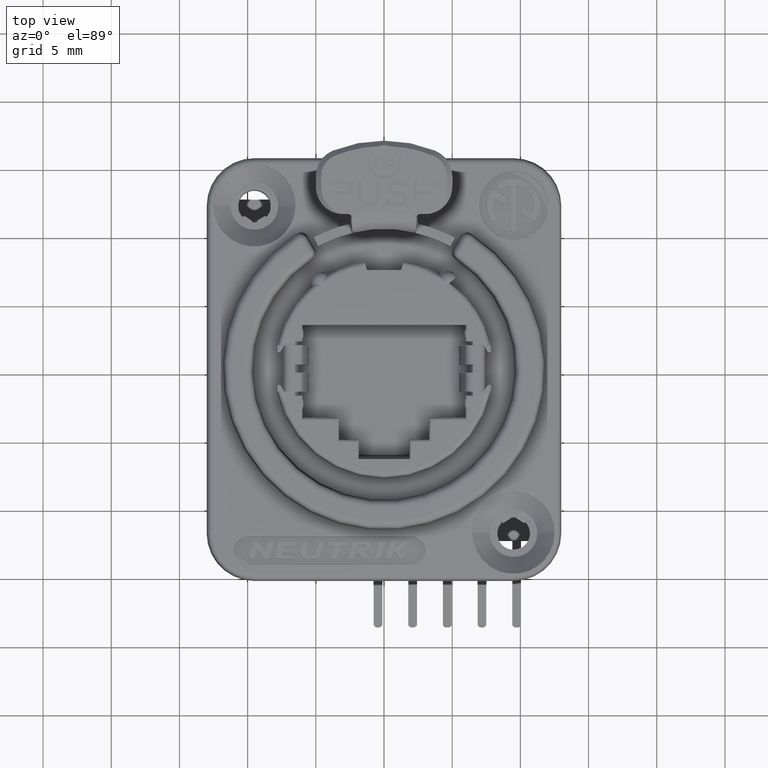
[diagram: clean part render]
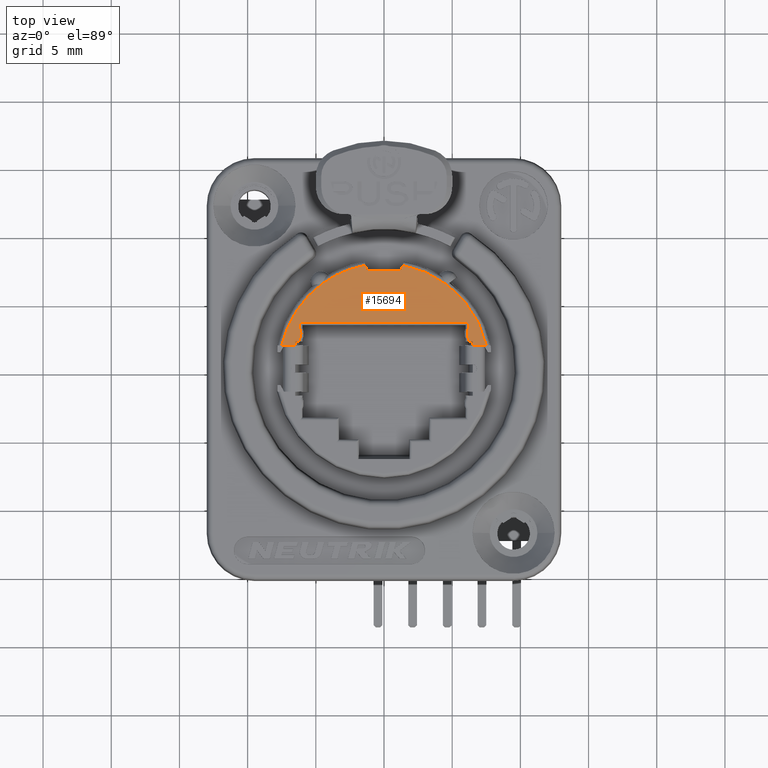
[diagram: same view with one face highlighted and labeled with its STEP entity id]
A machine part, top view. The second image highlights one B-rep face of the part: STEP entity #15694.
In plain terms, the highlighted planar face has unit normal (0, 0, -1).
Its self-contained STEP definition (entity closure, byte-faithful):
#4836=CARTESIAN_POINT('',(0.E0,0.E0,4.546363285840E-14));
#4837=DIRECTION('',(0.E0,0.E0,1.E0));
#4838=DIRECTION('',(-5.864033070268E-1,8.100192352704E-1,0.E0));
#4839=AXIS2_PLACEMENT_3D('',#4836,#4837,#4838);
#4852=CARTESIAN_POINT('',(-4.506210184517E0,6.224960029989E0,0.E0));
#4927=DIRECTION('',(0.E0,1.E0,0.E0));
#4928=VECTOR('',#4927,1.961727116233E-1);
#4929=CARTESIAN_POINT('',(-6.175E0,2.E0,0.E0));
#4930=LINE('',#4929,#4928);
#4931=DIRECTION('',(0.E0,1.E0,0.E0));
#4932=VECTOR('',#4931,3.E-1);
#4933=CARTESIAN_POINT('',(-6.51025E0,1.7E0,0.E0));
#4934=LINE('',#4933,#4932);
#4935=DIRECTION('',(-1.E0,0.E0,1.216469403864E-14));
#4936=VECTOR('',#4935,9.841517518526E-1);
#4937=CARTESIAN_POINT('',(-6.51025E0,1.7E0,0.E0));
#4938=LINE('',#4937,#4936);
#4939=CARTESIAN_POINT('',(0.E0,0.E0,4.546363285840E-14));
#4940=DIRECTION('',(0.E0,0.E0,-1.E0));
#4941=DIRECTION('',(-5.864033070268E-1,8.100192352704E-1,0.E0));
#4942=AXIS2_PLACEMENT_3D('',#4939,#4940,#4941);
#4944=DIRECTION('',(3.007057995043E-1,-9.537169507482E-1,0.E0));
#4945=VECTOR('',#4944,3.803114311107E-1);
#4946=CARTESIAN_POINT('',(-1.364361852953E0,7.562709458414E0,0.E0));
#4947=LINE('',#4946,#4945);
#4948=DIRECTION('',(-1.E0,0.E0,0.E0));
#4949=VECTOR('',#4948,2.5E0);
#4950=CARTESIAN_POINT('',(1.25E0,7.2E0,0.E0));
#4951=LINE('',#4950,#4949);
#4952=DIRECTION('',(-3.007057995043E-1,-9.537169507482E-1,0.E0));
#4953=VECTOR('',#4952,3.803114311107E-1);
#4954=CARTESIAN_POINT('',(1.364361852953E0,7.562709458414E0,0.E0));
#4955=LINE('',#4954,#4953);
#4956=CARTESIAN_POINT('',(0.E0,0.E0,4.546363285840E-14));
#4957=DIRECTION('',(0.E0,0.E0,-1.E0));
#4958=DIRECTION('',(1.775404606635E-1,9.841135020044E-1,0.E0));
#4959=AXIS2_PLACEMENT_3D('',#4956,#4957,#4958);
#4961=DIRECTION('',(-1.E0,0.E0,-1.182626360170E-14));
#4962=VECTOR('',#4961,9.841517518526E-1);
#4963=CARTESIAN_POINT('',(7.494401751853E0,1.7E0,1.163883804149E-14));
#4964=LINE('',#4963,#4962);
#4965=DIRECTION('',(0.E0,1.E0,0.E0));
#4966=VECTOR('',#4965,3.E-1);
#4967=CARTESIAN_POINT('',(6.51025E0,1.7E0,0.E0));
#4968=LINE('',#4967,#4966);
#4969=DIRECTION('',(0.E0,-1.E0,0.E0));
#4970=VECTOR('',#4969,1.961727116233E-1);
#4971=CARTESIAN_POINT('',(6.175E0,2.196172711623E0,0.E0));
#4972=LINE('',#4971,#4970);
#4973=CARTESIAN_POINT('',(6.8925E0,2.55E0,0.E0));
#4974=DIRECTION('',(0.E0,0.E0,1.E0));
#4975=DIRECTION('',(-8.96875E-1,4.422841104709E-1,0.E0));
#4976=AXIS2_PLACEMENT_3D('',#4973,#4974,#4975);
#4978=DIRECTION('',(0.E0,-1.E0,0.E0));
#4979=VECTOR('',#4978,4.811727116233E-1);
#4980=CARTESIAN_POINT('',(6.175E0,3.385E0,0.E0));
#4981=LINE('',#4980,#4979);
#4982=DIRECTION('',(-1.E0,0.E0,0.E0));
#4983=VECTOR('',#4982,1.235E1);
#4984=CARTESIAN_POINT('',(6.175E0,3.385E0,0.E0));
#4985=LINE('',#4984,#4983);
#4986=DIRECTION('',(0.E0,1.E0,0.E0));
#4987=VECTOR('',#4986,4.811727116233E-1);
#4988=CARTESIAN_POINT('',(-6.175E0,2.903827288377E0,0.E0));
#4989=LINE('',#4988,#4987);
#4990=CARTESIAN_POINT('',(-6.8925E0,2.55E0,0.E0));
#4991=DIRECTION('',(0.E0,0.E0,1.E0));
#4992=DIRECTION('',(8.96875E-1,-4.422841104709E-1,0.E0));
#4993=AXIS2_PLACEMENT_3D('',#4990,#4991,#4992);
#5081=CARTESIAN_POINT('',(6.175E0,2.E0,0.E0));
#5087=DIRECTION('',(1.E0,0.E0,0.E0));
#5088=VECTOR('',#5087,3.3525E-1);
#5089=CARTESIAN_POINT('',(6.175E0,2.E0,0.E0));
#5090=LINE('',#5089,#5088);
#5107=DIRECTION('',(1.E0,0.E0,0.E0));
#5108=VECTOR('',#5107,3.3525E-1);
#5109=CARTESIAN_POINT('',(-6.51025E0,2.E0,0.E0));
#5110=LINE('',#5109,#5108);
#5115=CARTESIAN_POINT('',(-6.175E0,2.E0,0.E0));
#7268=VERTEX_POINT('',#4852);
#7293=CARTESIAN_POINT('',(7.494401751853E0,1.7E0,1.163883804149E-14));
#7294=CARTESIAN_POINT('',(6.51025E0,1.7E0,0.E0));
#7295=VERTEX_POINT('',#7293);
#7296=VERTEX_POINT('',#7294);
#7297=CARTESIAN_POINT('',(-6.51025E0,1.7E0,0.E0));
#7298=CARTESIAN_POINT('',(-7.494401751853E0,1.7E0,1.197190494887E-14));
#7299=VERTEX_POINT('',#7297);
#7300=VERTEX_POINT('',#7298);
#7311=CARTESIAN_POINT('',(6.51025E0,2.E0,0.E0));
#7312=VERTEX_POINT('',#7311);
#7315=CARTESIAN_POINT('',(-6.51025E0,2.E0,0.E0));
#7316=VERTEX_POINT('',#7315);
#7697=CARTESIAN_POINT('',(1.25E0,7.2E0,0.E0));
#7698=CARTESIAN_POINT('',(-1.25E0,7.2E0,0.E0));
#7699=VERTEX_POINT('',#7697);
#7700=VERTEX_POINT('',#7698);
#7701=CARTESIAN_POINT('',(-1.364361852953E0,7.562709458414E0,0.E0));
#7702=VERTEX_POINT('',#7701);
#7703=CARTESIAN_POINT('',(1.364361852953E0,7.562709458414E0,0.E0));
#7704=VERTEX_POINT('',#7703);
#7720=VERTEX_POINT('',#5115);
#7721=CARTESIAN_POINT('',(-6.175E0,2.196172711623E0,0.E0));
#7722=VERTEX_POINT('',#7721);
#7725=CARTESIAN_POINT('',(-6.175E0,2.903827288377E0,0.E0));
#7726=VERTEX_POINT('',#7725);
#7729=CARTESIAN_POINT('',(-6.175E0,3.385E0,0.E0));
#7730=VERTEX_POINT('',#7729);
#7733=CARTESIAN_POINT('',(6.175E0,3.385E0,0.E0));
#7734=CARTESIAN_POINT('',(6.175E0,2.903827288377E0,0.E0));
#7735=VERTEX_POINT('',#7733);
#7736=VERTEX_POINT('',#7734);
#7741=CARTESIAN_POINT('',(6.175E0,2.196172711623E0,0.E0));
#7742=VERTEX_POINT('',#7741);
#7745=VERTEX_POINT('',#5081);
#15655=CARTESIAN_POINT('',(0.E0,0.E0,0.E0));
#15656=DIRECTION('',(0.E0,0.E0,-1.E0));
#15657=DIRECTION('',(0.E0,-1.E0,0.E0));
#15658=AXIS2_PLACEMENT_3D('',#15655,#15656,#15657);
#15659=PLANE('',#15658);
#15661=ORIENTED_EDGE('',*,*,#15660,.F.);
#15663=ORIENTED_EDGE('',*,*,#15662,.F.);
#15665=ORIENTED_EDGE('',*,*,#15664,.F.);
#15667=ORIENTED_EDGE('',*,*,#15666,.T.);
#15668=ORIENTED_EDGE('',*,*,#15614,.F.);
#15669=ORIENTED_EDGE('',*,*,#15625,.T.);
#15670=ORIENTED_EDGE('',*,*,#15550,.T.);
#15671=ORIENTED_EDGE('',*,*,#15566,.F.);
#15672=ORIENTED_EDGE('',*,*,#15581,.F.);
#15673=ORIENTED_EDGE('',*,*,#15650,.T.);
#15675=ORIENTED_EDGE('',*,*,#15674,.T.);
#15677=ORIENTED_EDGE('',*,*,#15676,.T.);
#15679=ORIENTED_EDGE('',*,*,#15678,.F.);
#15681=ORIENTED_EDGE('',*,*,#15680,.F.);
#15683=ORIENTED_EDGE('',*,*,#15682,.F.);
#15685=ORIENTED_EDGE('',*,*,#15684,.F.);
#15687=ORIENTED_EDGE('',*,*,#15686,.T.);
#15689=ORIENTED_EDGE('',*,*,#15688,.F.);
#15691=ORIENTED_EDGE('',*,*,#15690,.F.);
#15692=EDGE_LOOP('',(#15661,#15663,#15665,#15667,#15668,#15669,#15670,#15671,
#15672,#15673,#15675,#15677,#15679,#15681,#15683,#15685,#15687,#15689,#15691));
#15693=FACE_OUTER_BOUND('',#15692,.F.);
#15694=ADVANCED_FACE('',(#15693),#15659,.F.);
#4840=CIRCLE('',#4839,7.684793921646E0);
#4943=CIRCLE('',#4942,7.684793921646E0);
#4960=CIRCLE('',#4959,7.684793921646E0);
#4977=CIRCLE('',#4976,8.E-1);
#4994=CIRCLE('',#4993,8.E-1);
#15550=EDGE_CURVE('',#7702,#7700,#4947,.T.);
#15566=EDGE_CURVE('',#7699,#7700,#4951,.T.);
#15581=EDGE_CURVE('',#7704,#7699,#4955,.T.);
#15614=EDGE_CURVE('',#7268,#7300,#4840,.T.);
#15625=EDGE_CURVE('',#7268,#7702,#4943,.T.);
#15650=EDGE_CURVE('',#7704,#7295,#4960,.T.);
#15660=EDGE_CURVE('',#7720,#7722,#4930,.T.);
#15662=EDGE_CURVE('',#7316,#7720,#5110,.T.);
#15664=EDGE_CURVE('',#7299,#7316,#4934,.T.);
#15666=EDGE_CURVE('',#7299,#7300,#4938,.T.);
#15674=EDGE_CURVE('',#7295,#7296,#4964,.T.);
#15676=EDGE_CURVE('',#7296,#7312,#4968,.T.);
#15678=EDGE_CURVE('',#7745,#7312,#5090,.T.);
#15680=EDGE_CURVE('',#7742,#7745,#4972,.T.);
#15682=EDGE_CURVE('',#7736,#7742,#4977,.T.);
#15684=EDGE_CURVE('',#7735,#7736,#4981,.T.);
#15686=EDGE_CURVE('',#7735,#7730,#4985,.T.);
#15688=EDGE_CURVE('',#7726,#7730,#4989,.T.);
#15690=EDGE_CURVE('',#7722,#7726,#4994,.T.);